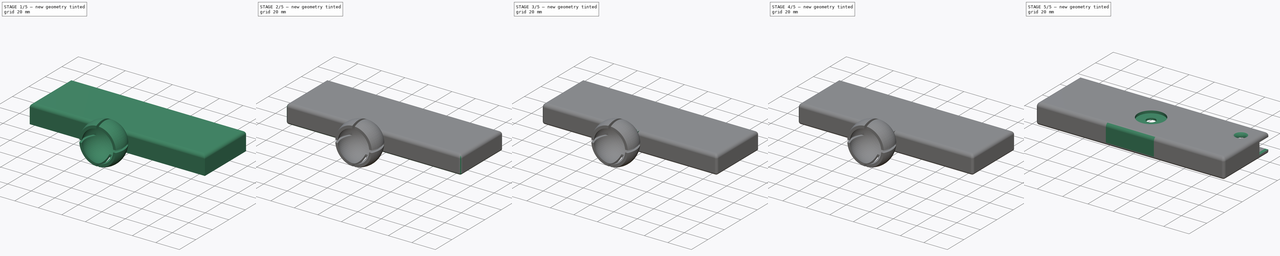
[diagram: build sequence overview — one tinted view per stage of 5, left to right]
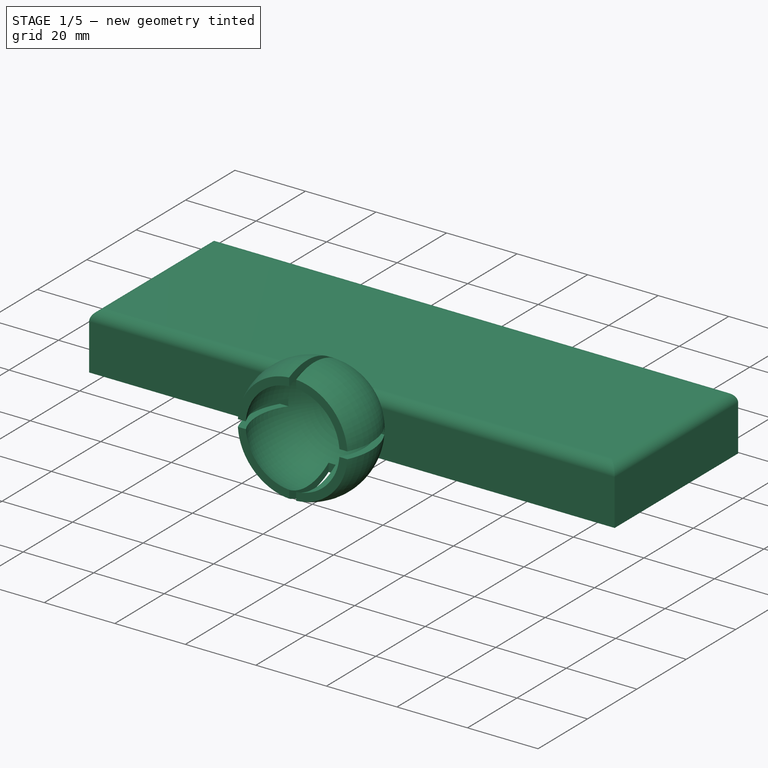
[diagram: stage 1 of 5 — iso view after this stage's code; geometry added in this stage tinted green]
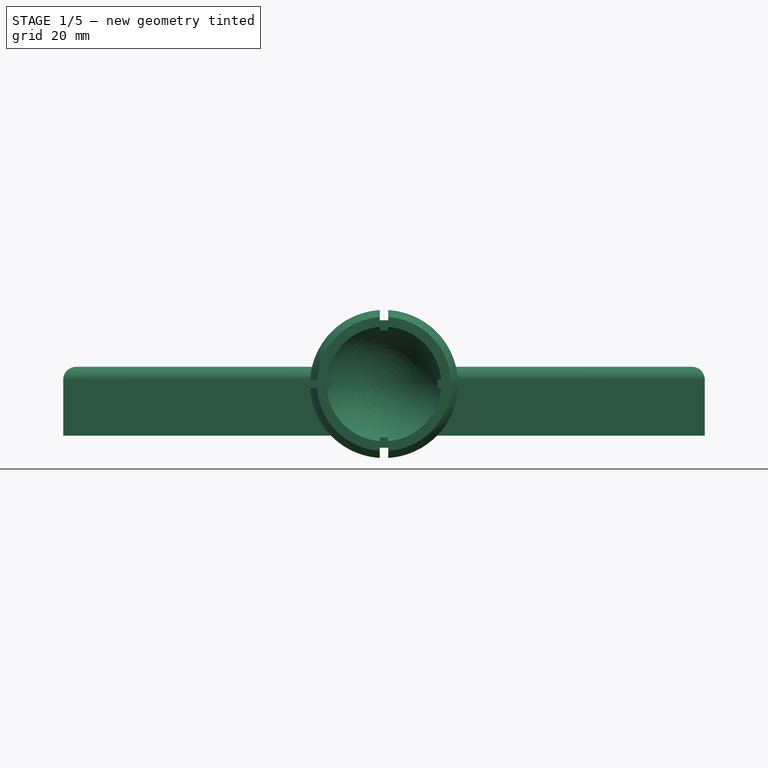
[diagram: stage 1 of 5 — front view after this stage's code; geometry added in this stage tinted green]
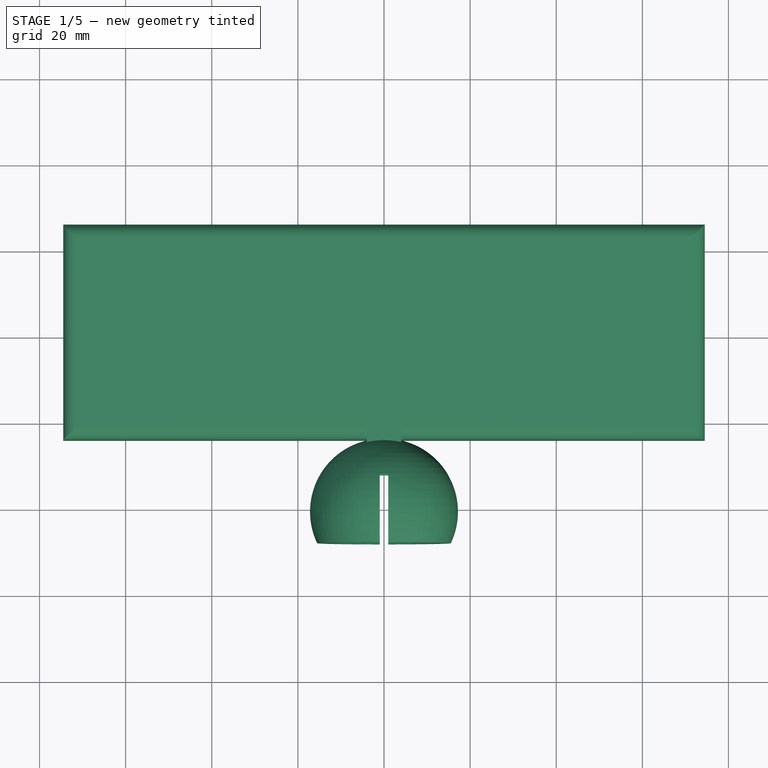
[diagram: stage 1 of 5 — top view after this stage's code; geometry added in this stage tinted green]
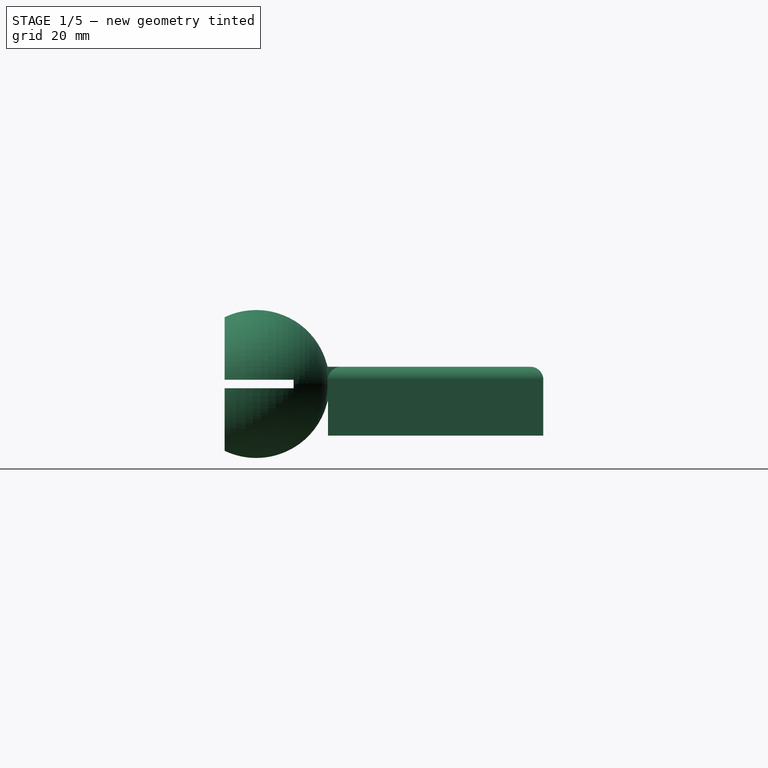
[diagram: stage 1 of 5 — right view after this stage's code; geometry added in this stage tinted green]
FCSTD DOCUMENT  (FreeCAD 0.18R4 (GitTag))
Label: Gimbal_Huawei
License: All rights reserved
LicenseURL: http://en.wikipedia.org/wiki/All_rights_reserved
objects: PartDesign::Pad×28, Sketcher::SketchObject×13, PartDesign::Pocket×12, PartDesign::Fillet×5, PartDesign::Revolution×1, PartDesign::Body×1
note: 101 computed .brp shape members not serialized (recipe doc carries the construction recipe); baked Part::Feature solids carry a one-line shape summary decoded from their .brp

FEATURE [Sketcher::SketchObject] Sketch
  MapMode = 5
  Support = -> [XY_Plane]
  sketch-geometry (4):
    g0: ArcOfCircle CenterX=0.205198 CenterY=19.3179 CenterZ=0 NormalX=0 NormalY=0 NormalZ=1 AngleXU=0 Radius=15 StartAngle=4.69871 EndAngle=7.86766
    g1: LineSegment StartX=0 StartY=34.3165 StartZ=0 EndX=0 EndY=36.3165 EndZ=0
    g2: LineSegment StartX=0 StartY=2.31927 StartZ=0 EndX=0 EndY=4.31927 EndZ=0
    g3: ArcOfCircle CenterX=0.205198 CenterY=19.3179 CenterZ=0 NormalX=0 NormalY=0 NormalZ=1 AngleXU=0 Radius=16.9998 StartAngle=4.70032 EndAngle=7.86605
  constraints (11):
    c: Coincident(g1,g0)
    c: PointOnObject(g1,g-2)
    c: Vertical(g1)
    c: Radius(g0) = 15
    c: Distance(g1) = 2
    c: PointOnObject(g2,g-2)
    c: Coincident(g2,g0)
    c: Vertical(g2)
    c: Coincident(g3,g0)
    c: Coincident(g3,g1)
    c: Coincident(g3,g2)
FEATURE [PartDesign::Revolution] Revolution
  Angle = 360
  Axis = (0,1,0)
  Base = (0,0,0)
  Profile = -> Sketch
  ReferenceAxis = -> Sketch [V_Axis]
  Reversed = true
FEATURE [Sketcher::SketchObject] Sketch001
  MapMode = 5
  Placement = pos=(0,0,0) rot=(1,0,0;1.5708rad)
  Support = -> [XZ_Plane]
  sketch-geometry (4):
    g0: LineSegment StartX=-28.6439 StartY=23.099 StartZ=0 EndX=33.6131 EndY=23.099 EndZ=0
    g1: LineSegment StartX=33.6131 StartY=23.099 StartZ=0 EndX=33.6131 EndY=-26.111 EndZ=0
    g2: LineSegment StartX=33.6131 StartY=-26.111 StartZ=0 EndX=-28.6439 EndY=-26.111 EndZ=0
    g3: LineSegment StartX=-28.6439 StartY=-26.111 StartZ=0 EndX=-28.6439 EndY=23.099 EndZ=0
  constraints (8):
    c: Coincident(g0,g1)
    c: Coincident(g1,g2)
    c: Coincident(g2,g3)
    c: Coincident(g3,g0)
    c: Horizontal(g0)
    c: Horizontal(g2)
    c: Vertical(g1)
    c: Vertical(g3)
FEATURE [PartDesign::Pocket] Pocket
  BaseFeature = -> Revolution
  Length = 12
  Length2 = 100
  Profile = -> Sketch001
  Type = 0
FEATURE [Sketcher::SketchObject] Sketch002
  MapMode = 5
  Placement = pos=(0,12,-2.6e-15) rot=(1,0,0;1.5708rad)
  Support = -> [Pocket]
  sketch-geometry (16):
    g0: LineSegment StartX=-1 StartY=19.9134 StartZ=0 EndX=1 EndY=19.9134 EndZ=0
    g1: LineSegment StartX=1 StartY=19.9134 StartZ=0 EndX=1 EndY=6.83317 EndZ=0
    g2: LineSegment StartX=1 StartY=6.83317 StartZ=0 EndX=-1 EndY=6.83317 EndZ=0
    g3: LineSegment StartX=-1 StartY=6.83317 StartZ=0 EndX=-1 EndY=19.9134 EndZ=0
    g4: LineSegment StartX=5.15281 StartY=1 StartZ=0 EndX=32.8158 EndY=1 EndZ=0
    g5: LineSegment StartX=32.8158 StartY=1 StartZ=0 EndX=32.8158 EndY=-1 EndZ=0
    g6: LineSegment StartX=32.8158 StartY=-1 StartZ=0 EndX=5.15281 EndY=-1 EndZ=0
    g7: LineSegment StartX=5.15281 StartY=-1 StartZ=0 EndX=5.15281 EndY=1 EndZ=0
    g8: LineSegment StartX=-7.96572 StartY=1 StartZ=0 EndX=-26.0275 EndY=1 EndZ=0
    g9: LineSegment StartX=-26.0275 StartY=1 StartZ=0 EndX=-26.0275 EndY=-1 EndZ=0
    g10: LineSegment StartX=-26.0275 StartY=-1 StartZ=0 EndX=-7.96572 EndY=-1 EndZ=0
    g11: LineSegment StartX=-7.96572 StartY=-1 StartZ=0 EndX=-7.96572 EndY=1 EndZ=0
    g12: LineSegment StartX=-1 StartY=-8.59168 StartZ=0 EndX=1 EndY=-8.59168 EndZ=0
    g13: LineSegment StartX=1 StartY=-8.59168 StartZ=0 EndX=1 EndY=-22.7732 EndZ=0
    g14: LineSegment StartX=1 StartY=-22.7732 StartZ=0 EndX=-1 EndY=-22.7732 EndZ=0
    g15: LineSegment StartX=-1 StartY=-22.7732 StartZ=0 EndX=-1 EndY=-8.59168 EndZ=0
  constraints (40):
    c: Coincident(g0,g1)
    c: Coincident(g1,g2)
    c: Coincident(g2,g3)
    c: Coincident(g3,g0)
    c: Horizontal(g0)
    c: Horizontal(g2)
    c: Vertical(g1)
    c: Vertical(g3)
    c: DistanceX(g0,g0) = 2
    c: DistanceX(g-1,g1) = 1
    c: Coincident(g4,g5)
    c: Coincident(g5,g6)
    c: Coincident(g6,g7)
    c: Coincident(g7,g4)
    c: Horizontal(g4)
    c: Horizontal(g6)
    c: Vertical(g5)
    c: Vertical(g7)
    c: Coincident(g8,g9)
    c: Coincident(g9,g10)
    c: Coincident(g10,g11)
    c: Coincident(g11,g8)
    c: Horizontal(g8)
    c: Horizontal(g10)
    c: Vertical(g9)
    c: Vertical(g11)
    c: Coincident(g12,g13)
    c: Coincident(g13,g14)
    c: Coincident(g14,g15)
    c: Coincident(g15,g12)
    c: Horizontal(g12)
    c: Horizontal(g14)
    c: Vertical(g13)
    c: Vertical(g15)
    c: DistanceX(g14,g14) = 2
    c: DistanceX(g-1,g12) = 1
    c: DistanceY(g7,g7) = 2
    c: DistanceY(g-1,g4) = 1
    c: DistanceY(g11,g11) = 2
    c: DistanceY(g-1,g8) = 1
FEATURE [PartDesign::Pocket] Pocket001
  BaseFeature = -> Pocket
  Length = 16
  Length2 = 100
  Profile = -> Sketch002
  Type = 0
FEATURE [Sketcher::SketchObject] Sketch003
  MapMode = 5
  Support = -> [XY_Plane]
  sketch-geometry (4):
    g0: LineSegment StartX=-74.5 StartY=86 StartZ=0 EndX=74.5 EndY=86 EndZ=0
    g1: LineSegment StartX=74.5 StartY=86 StartZ=0 EndX=74.5 EndY=36 EndZ=0
    g2: LineSegment StartX=74.5 StartY=36 StartZ=0 EndX=-74.5 EndY=36 EndZ=0
    g3: LineSegment StartX=-74.5 StartY=36 StartZ=0 EndX=-74.5 EndY=86 EndZ=0
  constraints (12):
    c: Coincident(g0,g1)
    c: Coincident(g1,g2)
    c: Coincident(g2,g3)
    c: Coincident(g3,g0)
    c: Horizontal(g0)
    c: Horizontal(g2)
    c: Vertical(g1)
    c: Vertical(g3)
    c: DistanceX(g0,g0) = 149
    c: DistanceX(g-1,g1) = 74.5
    c: DistanceY(g1,g1) = 50
    c: DistanceY(g-1,g1) = 36
FEATURE [PartDesign::Pad] Pad
  BaseFeature = -> Pocket001
  Length = 4
  Length2 = 100
  Profile = -> Sketch003
  Type = 0
FEATURE [Sketcher::SketchObject] Sketch004
  MapMode = 5
  Placement = pos=(0,0,0) rot=(1,0,0;3.14159rad)
  Support = -> [Pad]
  sketch-geometry (12):
    g0: LineSegment StartX=-74.5 StartY=-36 StartZ=0 EndX=-71.5 EndY=-36 EndZ=0
    g1: LineSegment StartX=-71.5 StartY=-36 StartZ=0 EndX=-71.5 EndY=-86 EndZ=0
    g2: LineSegment StartX=-71.5 StartY=-86 StartZ=0 EndX=-74.5 EndY=-86 EndZ=0
    g3: LineSegment StartX=-74.5 StartY=-86 StartZ=0 EndX=-74.5 EndY=-36 EndZ=0
    g4: LineSegment StartX=74.5 StartY=-36 StartZ=0 EndX=71.5 EndY=-36 EndZ=0
    g5: LineSegment StartX=71.5 StartY=-36 StartZ=0 EndX=71.5 EndY=-86 EndZ=0
    g6: LineSegment StartX=71.5 StartY=-86 StartZ=0 EndX=74.5 EndY=-86 EndZ=0
    g7: LineSegment StartX=74.5 StartY=-86 StartZ=0 EndX=74.5 EndY=-36 EndZ=0
    g8: LineSegment StartX=-71.5 StartY=-36 StartZ=0 EndX=71.5 EndY=-36 EndZ=0
    g9: LineSegment StartX=71.5 StartY=-36 StartZ=0 EndX=71.5 EndY=-39 EndZ=0
    g10: LineSegment StartX=71.5 StartY=-39 StartZ=0 EndX=-71.5 EndY=-39 EndZ=0
    g11: LineSegment StartX=-71.5 StartY=-39 StartZ=0 EndX=-71.5 EndY=-36 EndZ=0
  constraints (35):
    c: Coincident(g0,g1)
    c: Coincident(g1,g2)
    c: Coincident(g2,g3)
    c: Coincident(g3,g0)
    c: Horizontal(g0)
    c: Horizontal(g2)
    c: Vertical(g1)
    c: Vertical(g3)
    c: Coincident(g4,g5)
    c: Coincident(g5,g6)
    c: Coincident(g6,g7)
    c: Coincident(g7,g4)
    c: Horizontal(g4)
    c: Horizontal(g6)
    c: Vertical(g5)
    c: Vertical(g7)
    c: DistanceX(g4,g4) = 3
    c: DistanceX(g0,g0) = 3
    c: DistanceY(g0,g-1) = 36
    c: DistanceY(g4,g-1) = 36
    c: DistanceX(g0,g-1) = 74.5
    c: DistanceX(g-1,g4) = 74.5
    c: DistanceY(g7,g7) = 50
    c: DistanceY(g3,g3) = 50
    c: Coincident(g8,g9)
    c: Coincident(g9,g10)
    c: Coincident(g10,g11)
    c: Coincident(g11,g8)
    c: Horizontal(g8)
    c: Horizontal(g10)
    c: Vertical(g9)
    c: Vertical(g11)
    c: Coincident(g8,g0)
    c: DistanceY(g9,g9) = 3
    c: DistanceX(g8,g8) = 143
FEATURE [PartDesign::Pad] Pad001
  BaseFeature = -> Pad
  Length = 12
  Length2 = 100
  Profile = -> Sketch004
  Type = 0
FEATURE [Sketcher::SketchObject] Sketch005
  MapMode = 5
  Placement = pos=(-71.5,0,0) rot=(0.57735,0.57735,0.57735;2.0944rad)
  Support = -> [Pad001]
  sketch-geometry (4):
    g0: LineSegment StartX=36 StartY=-9 StartZ=0 EndX=86 EndY=-9 EndZ=0
    g1: LineSegment StartX=86 StartY=-9 StartZ=0 EndX=86 EndY=-12 EndZ=0
    g2: LineSegment StartX=86 StartY=-12 StartZ=0 EndX=36 EndY=-12 EndZ=0
    g3: LineSegment StartX=36 StartY=-12 StartZ=0 EndX=36 EndY=-9 EndZ=0
  constraints (12):
    c: Coincident(g0,g1)
    c: Coincident(g1,g2)
    c: Coincident(g2,g3)
    c: Coincident(g3,g0)
    c: Horizontal(g0)
    c: Horizontal(g2)
    c: Vertical(g1)
    c: Vertical(g3)
    c: DistanceY(g1,g1) = 3
    c: DistanceY(g0,g-1) = 9
    c: DistanceX(g2,g2) = 50
    c: DistanceX(g-1,g2) = 36
FEATURE [PartDesign::Pad] Pad002
  BaseFeature = -> Pad001
  Length = 5
  Length2 = 100
  Profile = -> Sketch005
  Type = 0
FEATURE [Sketcher::SketchObject] Sketch006
  MapMode = 5
  Placement = pos=(71.5,0,0) rot=(0.57735,-0.57735,-0.57735;2.0944rad)
  Support = -> [Pad002]
  sketch-geometry (4):
    g0: LineSegment StartX=-86 StartY=-9 StartZ=0 EndX=-36 EndY=-9 EndZ=0
    g1: LineSegment StartX=-36 StartY=-9 StartZ=0 EndX=-36 EndY=-12 EndZ=0
    g2: LineSegment StartX=-36 StartY=-12 StartZ=0 EndX=-86 EndY=-12 EndZ=0
    g3: LineSegment StartX=-86 StartY=-12 StartZ=0 EndX=-86 EndY=-9 EndZ=0
  constraints (12):
    c: Coincident(g0,g1)
    c: Coincident(g1,g2)
    c: Coincident(g2,g3)
    c: Coincident(g3,g0)
    c: Horizontal(g0)
    c: Horizontal(g2)
    c: Vertical(g1)
    c: Vertical(g3)
    c: DistanceX(g2,g2) = 50
    c: DistanceX(g1,g-1) = 36
    c: DistanceY(g3,g3) = 3
    c: DistanceY(g1,g-1) = 12
FEATURE [PartDesign::Pad] Pad003
  BaseFeature = -> Pad002
  Length = 5
  Length2 = 100
  Profile = -> Sketch006
  Type = 0
FEATURE [Sketcher::SketchObject] Sketch007
  MapMode = 5
  Placement = pos=(0,36,0) rot=(1,0,0;1.5708rad)
  Support = -> [Pad003]
  sketch-geometry (4):
    g0: LineSegment StartX=-4 StartY=4 StartZ=0 EndX=4 EndY=4 EndZ=0
    g1: LineSegment StartX=4 StartY=4 StartZ=0 EndX=4 EndY=-4 EndZ=0
    g2: LineSegment StartX=4 StartY=-4 StartZ=0 EndX=-4 EndY=-4 EndZ=0
    g3: LineSegment StartX=-4 StartY=-4 StartZ=0 EndX=-4 EndY=4 EndZ=0
  constraints (12):
    c: Coincident(g0,g1)
    c: Coincident(g1,g2)
    c: Coincident(g2,g3)
    c: Coincident(g3,g0)
    c: Horizontal(g0)
    c: Horizontal(g2)
    c: Vertical(g1)
    c: Vertical(g3)
    c: DistanceY(g-1,g0) = 4
    c: DistanceY(g1,g1) = 8
    c: DistanceX(g2,g2) = 8
    c: DistanceX(g2,g-1) = 4
FEATURE [PartDesign::Pad] Pad004
  BaseFeature = -> Pad003
  Length = 1.5
  Length2 = 100
  Profile = -> Sketch007
  Type = 0
FEATURE [PartDesign::Fillet] Fillet
  Base = -> Pad004 [Face25]
  BaseFeature = -> Pad004
  Radius = 3
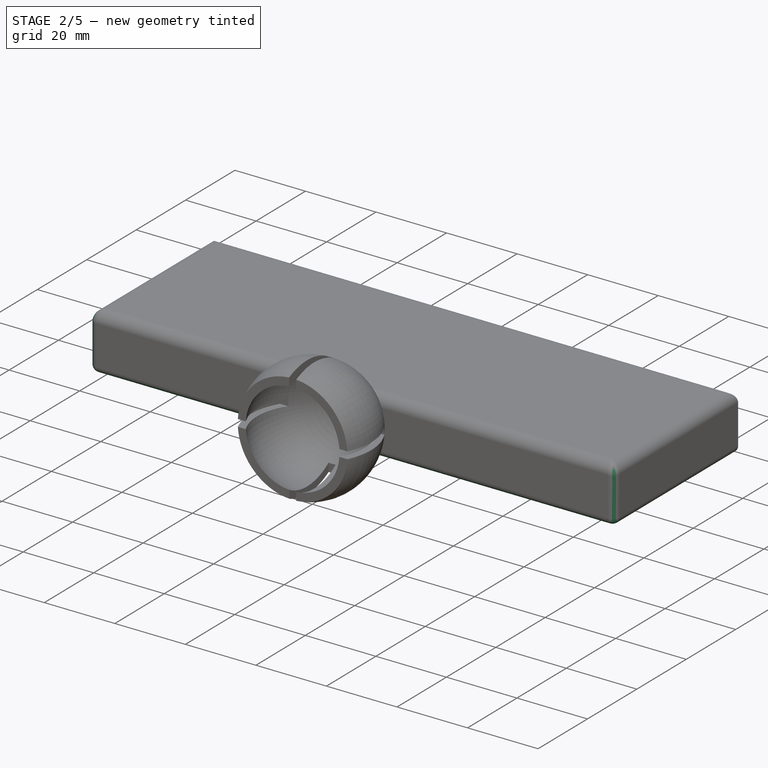
[diagram: stage 2 of 5 — iso view after this stage's code; geometry added in this stage tinted green]
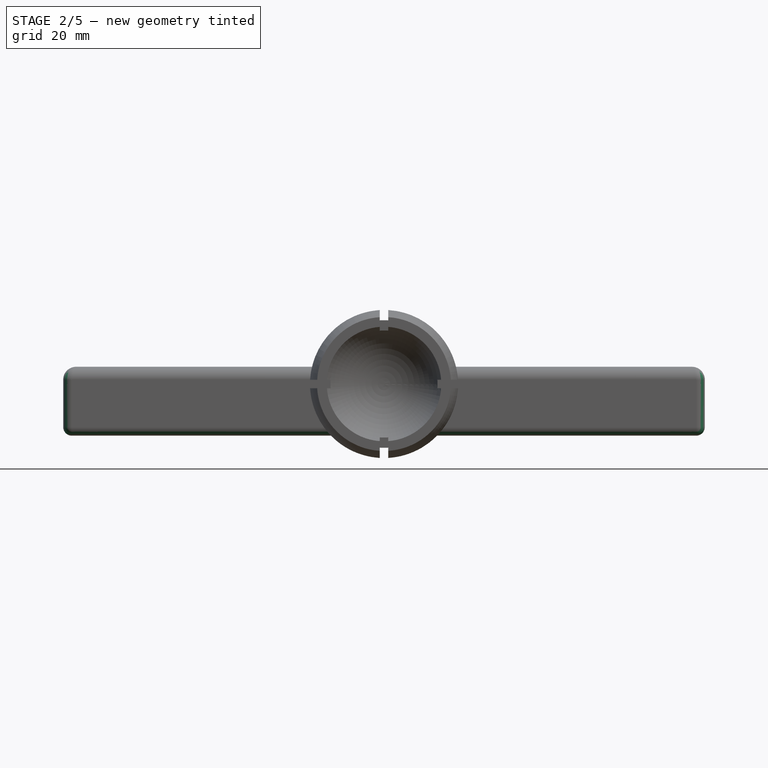
[diagram: stage 2 of 5 — front view after this stage's code; geometry added in this stage tinted green]
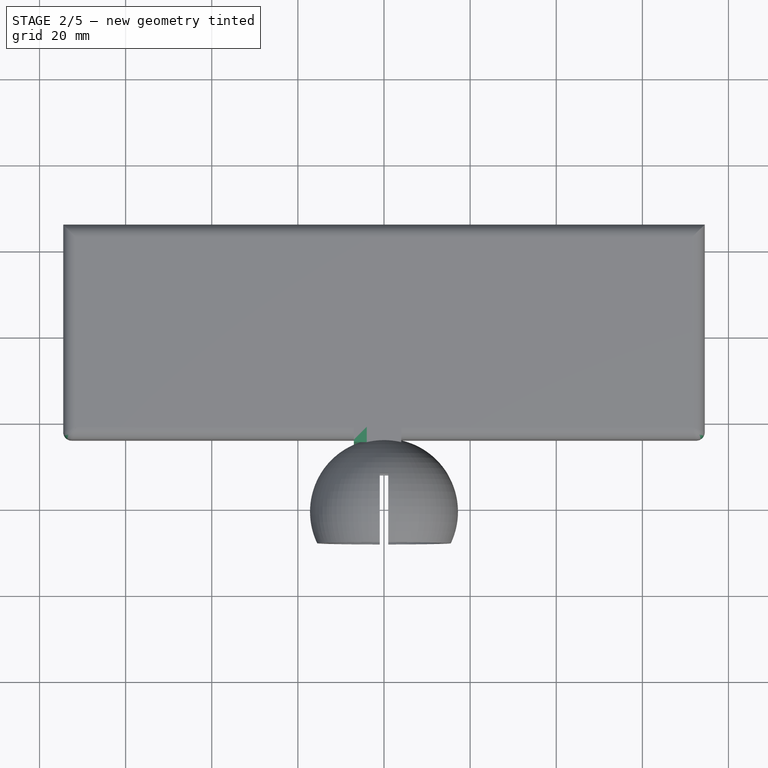
[diagram: stage 2 of 5 — top view after this stage's code; geometry added in this stage tinted green]
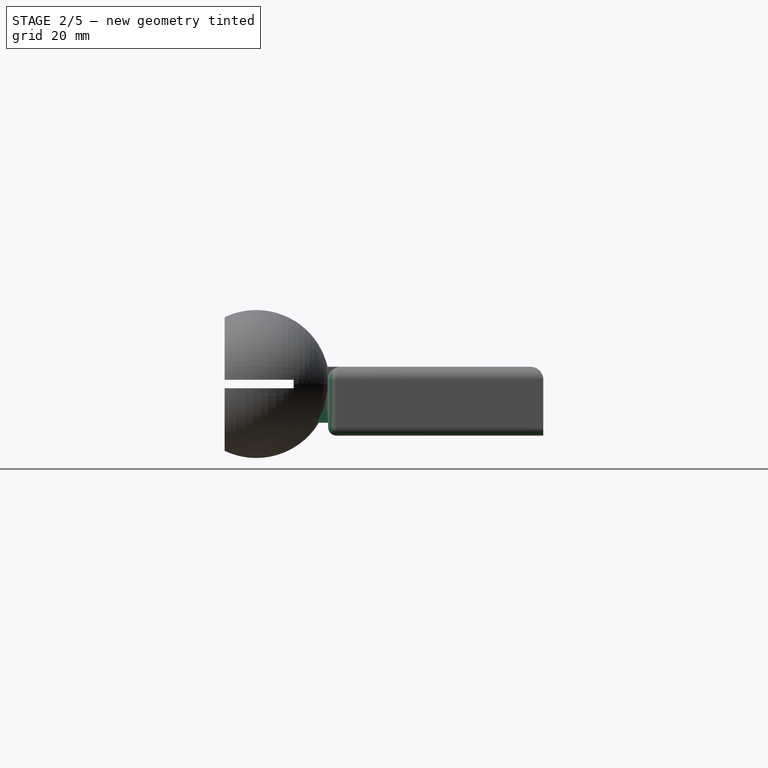
[diagram: stage 2 of 5 — right view after this stage's code; geometry added in this stage tinted green]
FEATURE [PartDesign::Fillet] Fillet001
  Base = -> Fillet [Edge18,Edge65,Edge68,Edge61,Edge58]
  BaseFeature = -> Fillet
  Radius = 2
FEATURE [PartDesign::Fillet] Fillet002
  Base = -> Fillet001 [Edge51,Edge52,Edge20,Edge60,Edge61,Edge26]
  BaseFeature = -> Fillet001
  Radius = 2
FEATURE [PartDesign::Fillet] Fillet003
  Base = -> Fillet002 [Edge186,Edge182,Edge187,Edge112,Edge122,Edge71]
  BaseFeature = -> Fillet002
  Radius = 1
FEATURE [PartDesign::Pad] Pad005
  BaseFeature = -> Fillet003
  Length = 5
  Length2 = 100
  Profile = -> Fillet003 [Face55]
  Type = 0
FEATURE [PartDesign::Pad] Pad006
  BaseFeature = -> Pad005
  Length = 2
  Length2 = 100
  Profile = -> Pad005 [Face66]
  Type = 0
FEATURE [PartDesign::Pad] Pad007
  BaseFeature = -> Pad006
  Length = 1
  Length2 = 100
  Profile = -> Pad006 [Face84]
  Type = 0
FEATURE [PartDesign::Pad] Pad008
  BaseFeature = -> Pad007
  Length = 3
  Length2 = 100
  Profile = -> Pad007 [Face54]
  Type = 0
FEATURE [PartDesign::Pad] Pad009
  BaseFeature = -> Pad008
  Length = 3
  Length2 = 100
  Profile = -> Pad008 [Face53]
  Type = 0
FEATURE [PartDesign::Pad] Pad010
  BaseFeature = -> Pad009
  Length = 3
  Length2 = 100
  Profile = -> Pad009 [Face73]
  Type = 0
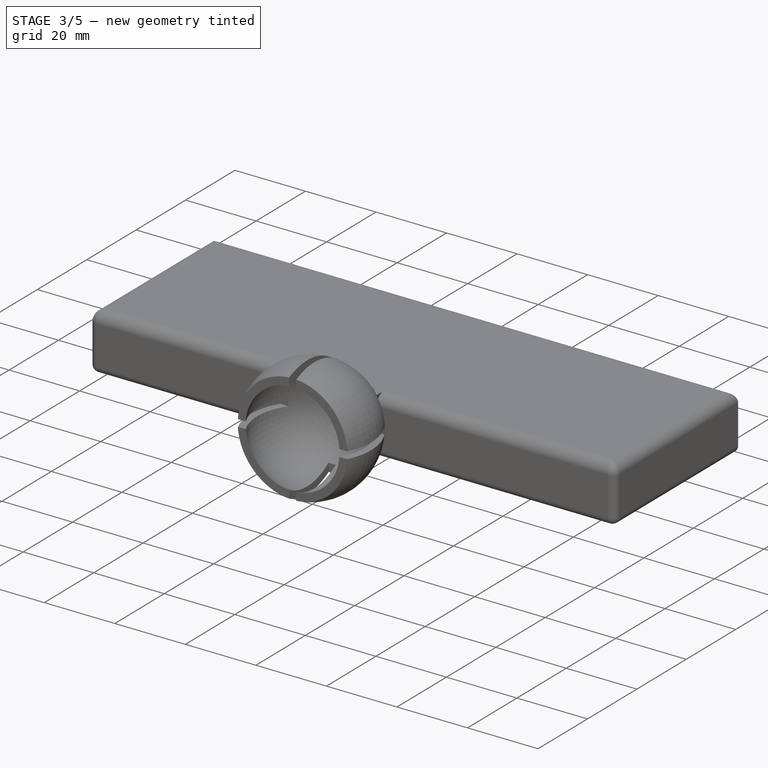
[diagram: stage 3 of 5 — iso view after this stage's code; geometry added in this stage tinted green]
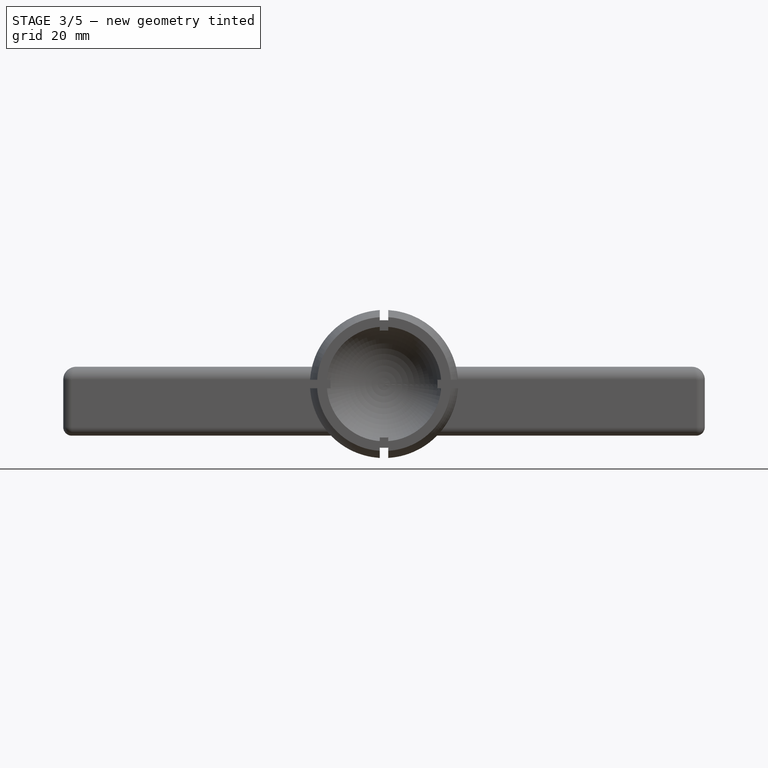
[diagram: stage 3 of 5 — front view after this stage's code; geometry added in this stage tinted green]
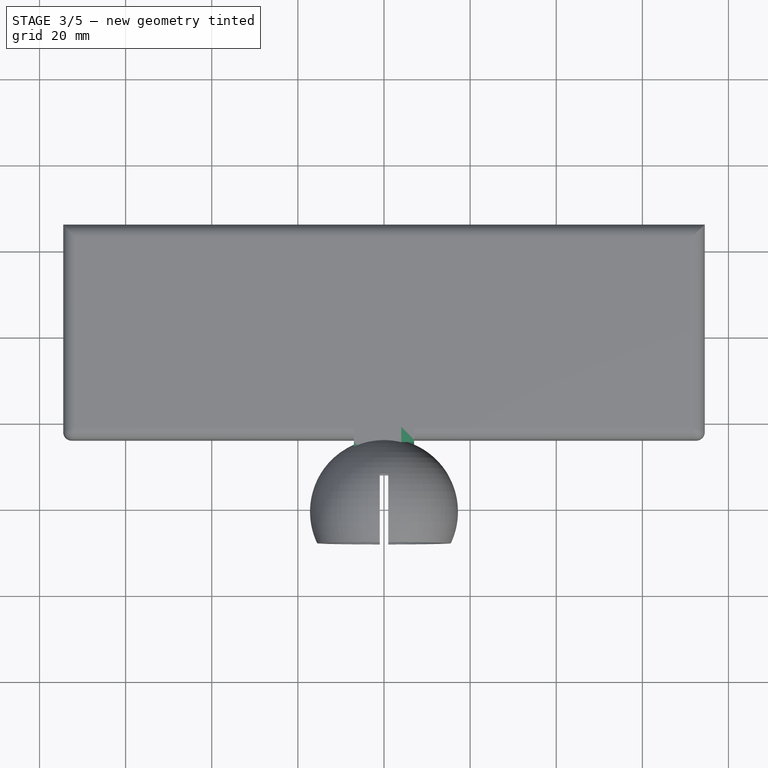
[diagram: stage 3 of 5 — top view after this stage's code; geometry added in this stage tinted green]
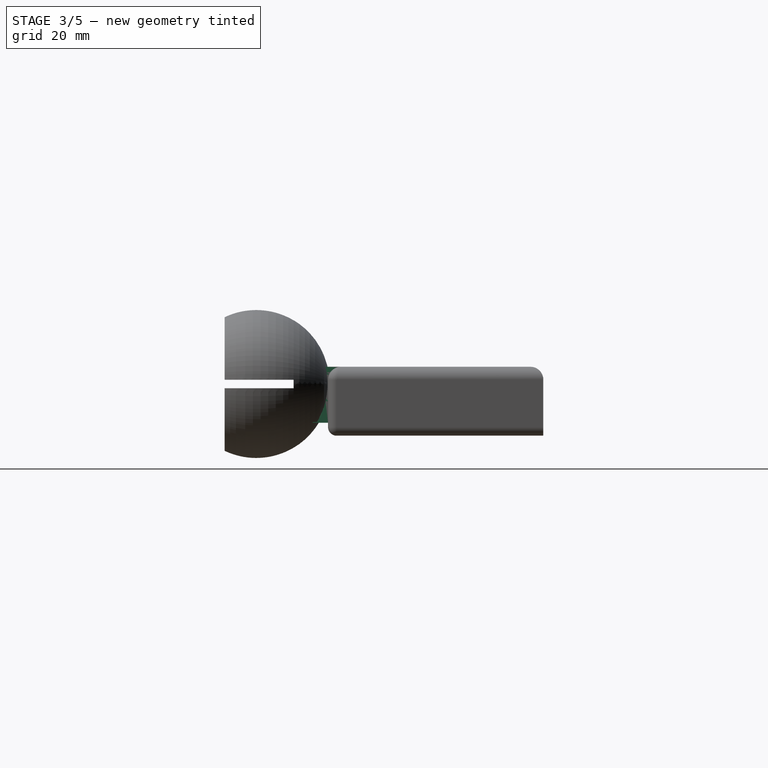
[diagram: stage 3 of 5 — right view after this stage's code; geometry added in this stage tinted green]
FEATURE [PartDesign::Pad] Pad011
  BaseFeature = -> Pad010
  Length = 1
  Length2 = 100
  Profile = -> Pad010 [Face75]
  Type = 0
FEATURE [PartDesign::Pad] Pad012
  BaseFeature = -> Pad011
  Length = 1
  Length2 = 100
  Profile = -> Pad011 [Face95]
  Type = 0
FEATURE [PartDesign::Pad] Pad013
  BaseFeature = -> Pad012
  Length = 1
  Length2 = 100
  Profile = -> Pad012 [Face74]
  Type = 0
FEATURE [PartDesign::Pad] Pad014
  BaseFeature = -> Pad013
  Length = 1
  Length2 = 100
  Profile = -> Pad013 [Face97]
  Type = 0
FEATURE [PartDesign::Pad] Pad015
  BaseFeature = -> Pad014
  Length = 1
  Length2 = 100
  Profile = -> Pad014 [Face98]
  Type = 0
FEATURE [PartDesign::Pad] Pad016
  BaseFeature = -> Pad015
  Length = 1
  Length2 = 100
  Profile = -> Pad015 [Face67]
  Type = 0
FEATURE [PartDesign::Pad] Pad017
  BaseFeature = -> Pad016
  Length = 3
  Length2 = 100
  Profile = -> Pad016 [Face58]
  Type = 0
FEATURE [PartDesign::Pad] Pad018
  BaseFeature = -> Pad017
  Length = 3
  Length2 = 100
  Profile = -> Pad017 [Face57]
  Type = 0
FEATURE [PartDesign::Pad] Pad019
  BaseFeature = -> Pad018
  Length = 3
  Length2 = 100
  Profile = -> Pad018 [Face86]
  Type = 0
FEATURE [PartDesign::Pad] Pad020
  BaseFeature = -> Pad019
  Length = 1
  Length2 = 100
  Profile = -> Pad019 [Face88]
  Type = 0
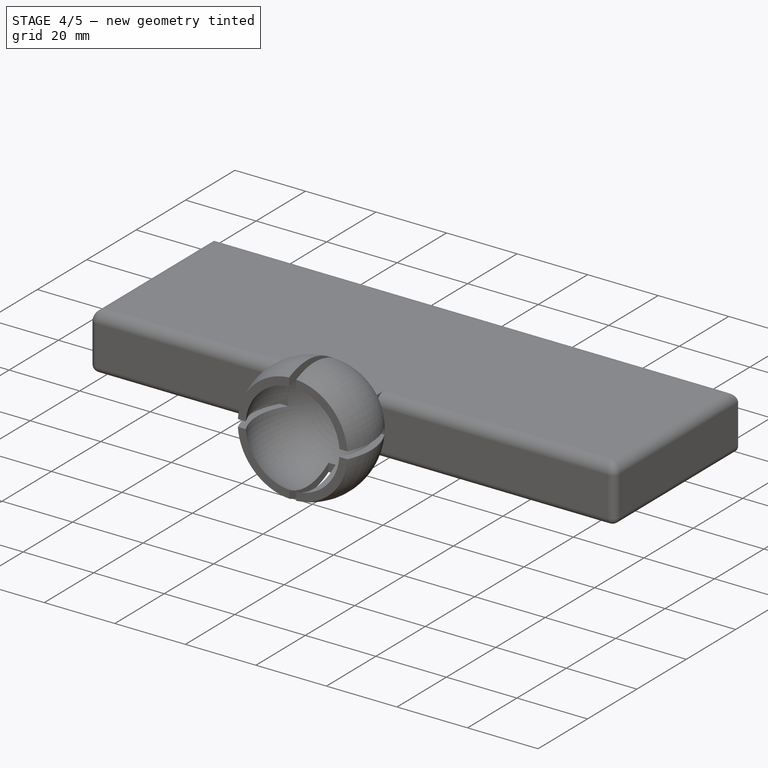
[diagram: stage 4 of 5 — iso view after this stage's code; geometry added in this stage tinted green]
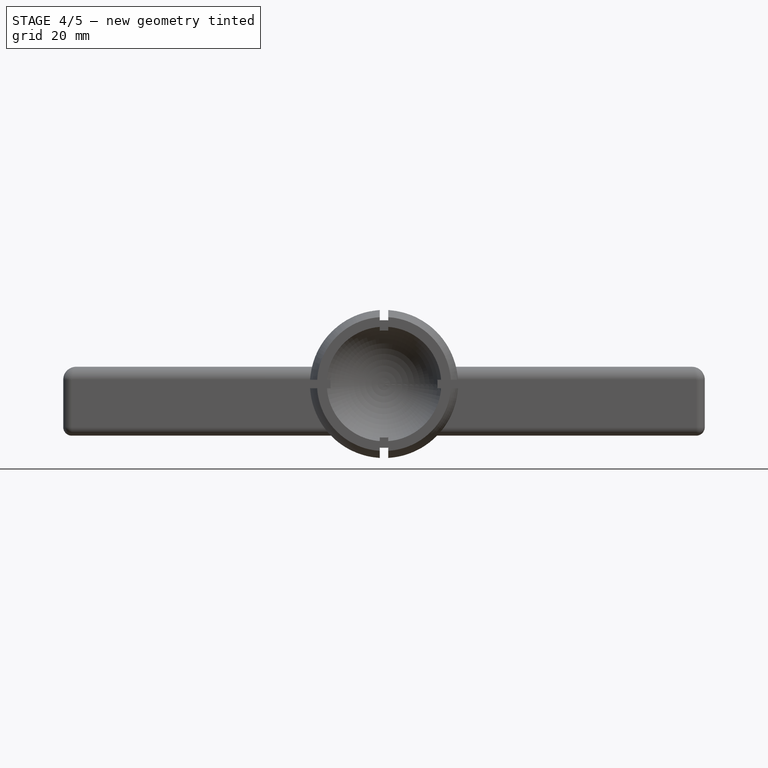
[diagram: stage 4 of 5 — front view after this stage's code; geometry added in this stage tinted green]
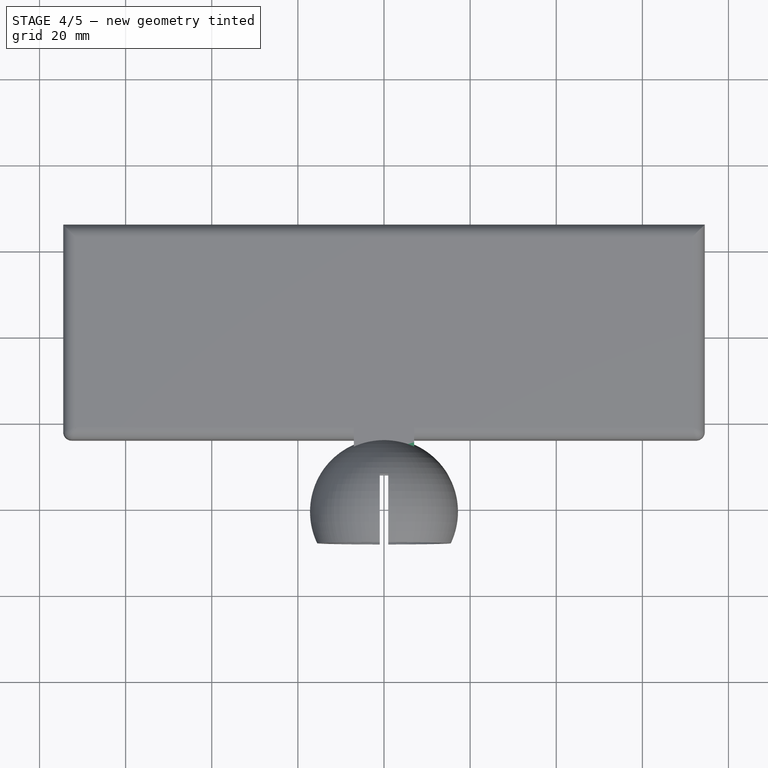
[diagram: stage 4 of 5 — top view after this stage's code; geometry added in this stage tinted green]
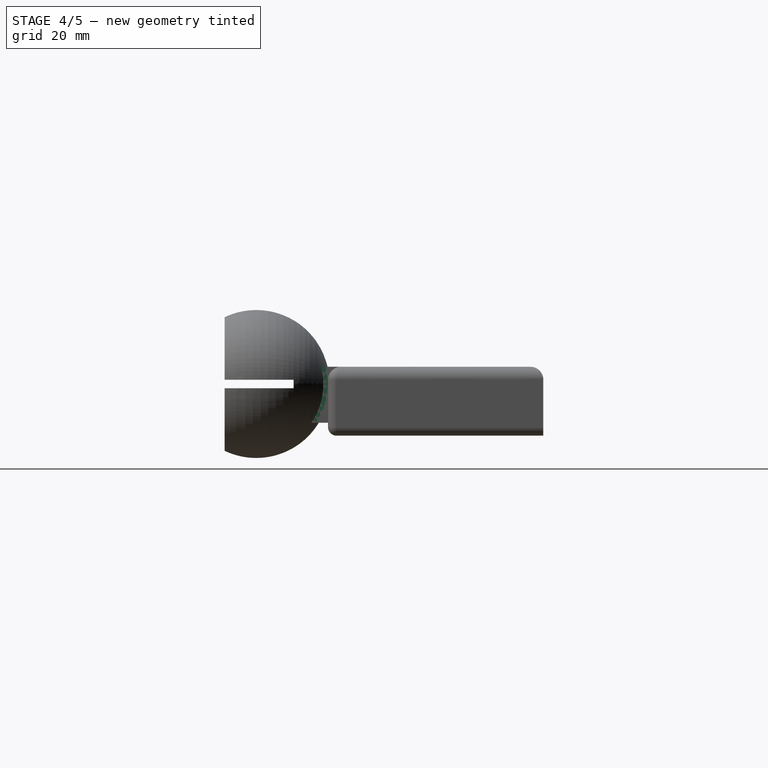
[diagram: stage 4 of 5 — right view after this stage's code; geometry added in this stage tinted green]
FEATURE [PartDesign::Pad] Pad021
  BaseFeature = -> Pad020
  Length = 1
  Length2 = 100
  Profile = -> Pad020 [Face113]
  Type = 0
FEATURE [PartDesign::Pad] Pad022
  BaseFeature = -> Pad021
  Length = 1
  Length2 = 100
  Profile = -> Pad021 [Face115]
  Type = 0
FEATURE [PartDesign::Pad] Pad023
  BaseFeature = -> Pad022
  Length = 1
  Length2 = 100
  Profile = -> Pad022 [Face117]
  Type = 0
FEATURE [PartDesign::Pad] Pad024
  BaseFeature = -> Pad023
  Length = 1
  Length2 = 100
  Profile = -> Pad023 [Face90]
  Type = 0
FEATURE [PartDesign::Pad] Pad025
  BaseFeature = -> Pad024
  Length = 1
  Length2 = 100
  Profile = -> Pad024 [Face78]
  Type = 0
FEATURE [PartDesign::Pad] Pad026
  BaseFeature = -> Pad025
  Length = 1
  Length2 = 100
  Profile = -> Pad025 [Face77]
  Type = 0
FEATURE [PartDesign::Pocket] Pocket002
  BaseFeature = -> Pad026
  Length = 0.5
  Length2 = 100
  Profile = -> Pad026 [Face17]
  Type = 0
FEATURE [PartDesign::Pocket] Pocket003
  BaseFeature = -> Pocket002
  Length = 0.5
  Length2 = 100
  Profile = -> Pocket002 [Face16]
  Type = 0
FEATURE [PartDesign::Pocket] Pocket004
  BaseFeature = -> Pocket003
  Length = 0.5
  Length2 = 100
  Profile = -> Pocket003 [Face18]
  Type = 0
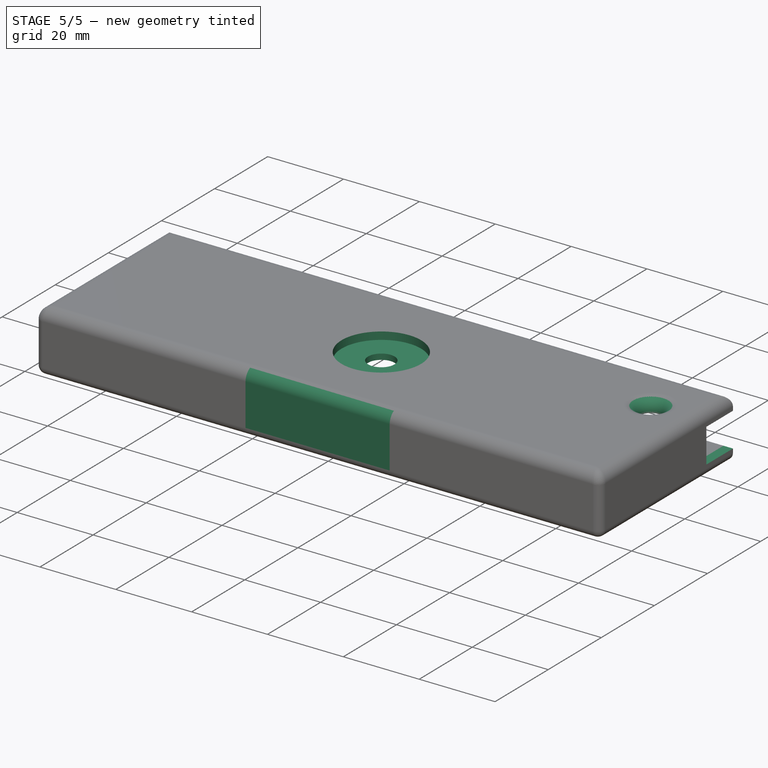
[diagram: stage 5 of 5 — iso view after this stage's code; geometry added in this stage tinted green]
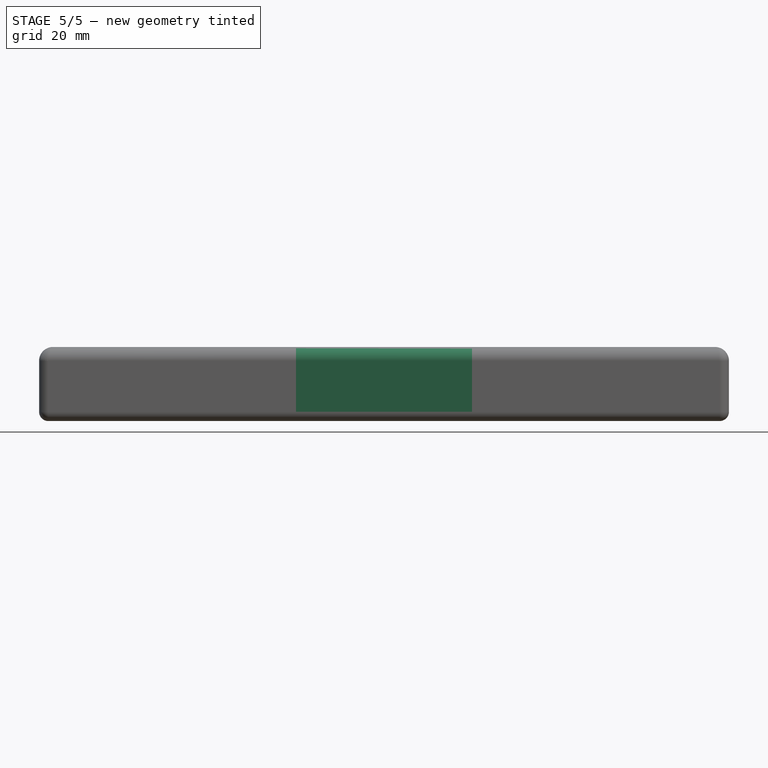
[diagram: stage 5 of 5 — front view after this stage's code; geometry added in this stage tinted green]
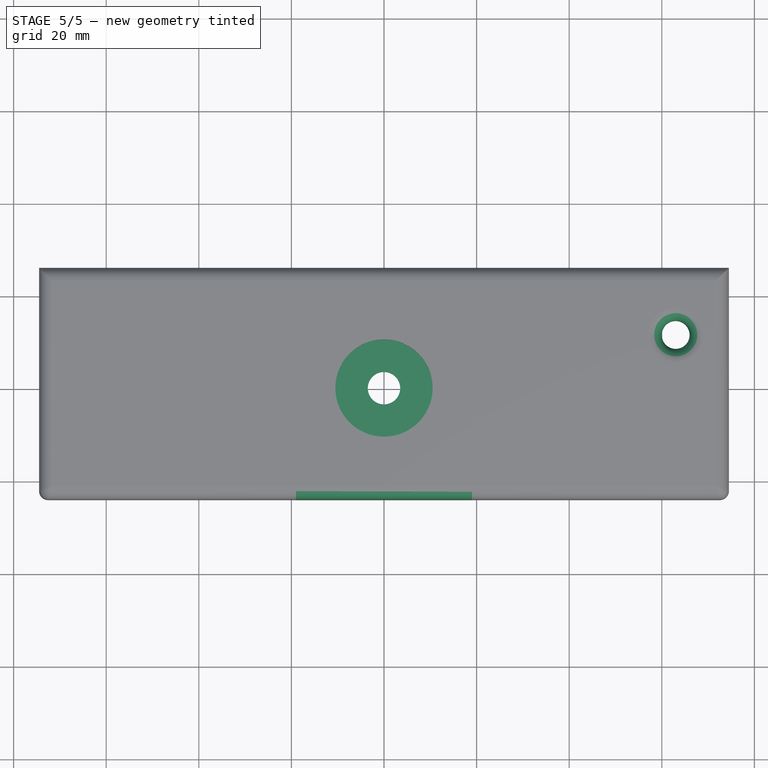
[diagram: stage 5 of 5 — top view after this stage's code; geometry added in this stage tinted green]
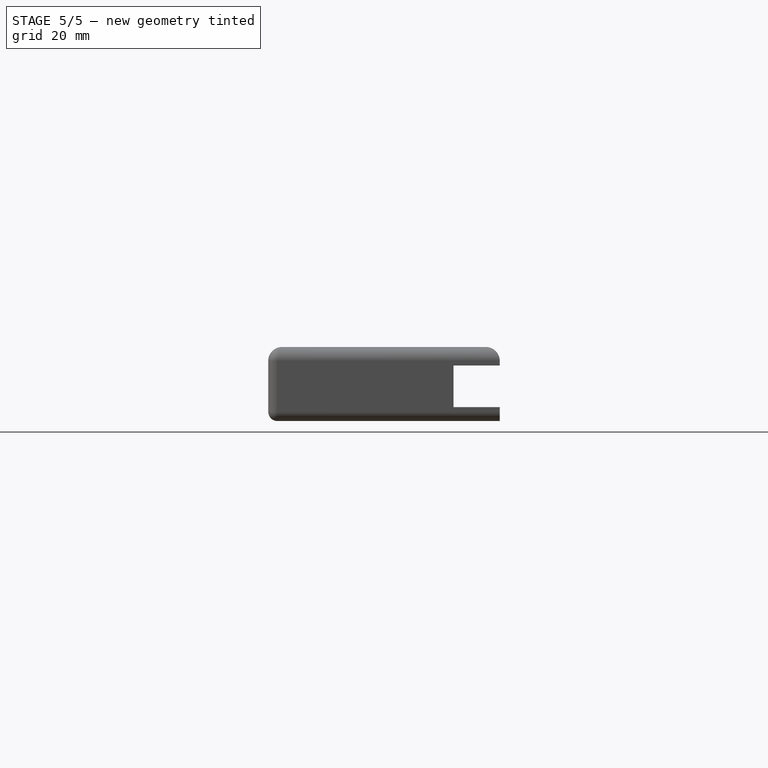
[diagram: stage 5 of 5 — right view after this stage's code; geometry added in this stage tinted green]
FEATURE [PartDesign::Pocket] Pocket005
  BaseFeature = -> Pocket004
  Length = 0.5
  Length2 = 100
  Profile = -> Pocket004 [Face37]
  Type = 0
FEATURE [PartDesign::Pocket] Pocket006
  BaseFeature = -> Pocket005
  Length = 0.5
  Length2 = 100
  Profile = -> Pocket005 [Face36]
  Type = 0
FEATURE [Sketcher::SketchObject] Sketch008
  MapMode = 5
  Placement = pos=(0,86,0) rot=(0,0.707107,0.707107;3.14159rad)
  Support = -> [Pocket006]
  sketch-geometry (4):
    g0: LineSegment StartX=-84.286 StartY=0 StartZ=0 EndX=79.0675 EndY=0 EndZ=0
    g1: LineSegment StartX=79.0675 StartY=0 StartZ=0 EndX=79.0675 EndY=-9 EndZ=0
    g2: LineSegment StartX=79.0675 StartY=-9 StartZ=0 EndX=-84.286 EndY=-9 EndZ=0
    g3: LineSegment StartX=-84.286 StartY=-9 StartZ=0 EndX=-84.286 EndY=0 EndZ=0
  constraints (10):
    c: Coincident(g0,g1)
    c: Coincident(g1,g2)
    c: Coincident(g2,g3)
    c: Coincident(g3,g0)
    c: Horizontal(g0)
    c: Horizontal(g2)
    c: Vertical(g1)
    c: Vertical(g3)
    c: PointOnObject(g0,g-1)
    c: DistanceY(g1,g1) = 9
FEATURE [PartDesign::Pocket] Pocket007
  BaseFeature = -> Pocket006
  Length = 10
  Length2 = 100
  Profile = -> Sketch008
  Type = 0
FEATURE [Sketcher::SketchObject] Sketch009
  MapMode = 5
  Placement = pos=(0,0,0.5) rot=(1,0,0;3.14159rad)
  Support = -> [Pocket007]
  sketch-geometry (1):
    g0: Circle CenterX=63 CenterY=-71.5 CenterZ=0 NormalX=0 NormalY=0 NormalZ=1 AngleXU=0 Radius=3
  constraints (3):
    c: Radius(g0) = 3
    c: DistanceX(g-1,g0) = 63
    c: DistanceY(g0,g-1) = 71.5
FEATURE [PartDesign::Pocket] Pocket008
  BaseFeature = -> Pocket007
  Length = 5
  Length2 = 100
  Profile = -> Sketch009
  Type = 0
FEATURE [PartDesign::Fillet] Fillet004
  Base = -> Pocket008 [Edge155]
  BaseFeature = -> Pocket008
  Radius = 3
FEATURE [Sketcher::SketchObject] Sketch010
  MapMode = 5
  Placement = pos=(0,12,-2.6e-15) rot=(1,0,0;1.5708rad)
  Support = -> [Fillet004]
  sketch-geometry (4):
    g0: LineSegment StartX=-19 StartY=25 StartZ=0 EndX=19 EndY=25 EndZ=0
    g1: LineSegment StartX=19 StartY=25 StartZ=0 EndX=19 EndY=-25 EndZ=0
    g2: LineSegment StartX=19 StartY=-25 StartZ=0 EndX=-19 EndY=-25 EndZ=0
    g3: LineSegment StartX=-19 StartY=-25 StartZ=0 EndX=-19 EndY=25 EndZ=0
  constraints (12):
    c: Coincident(g0,g1)
    c: Coincident(g1,g2)
    c: Coincident(g2,g3)
    c: Coincident(g3,g0)
    c: Horizontal(g0)
    c: Horizontal(g2)
    c: Vertical(g1)
    c: Vertical(g3)
    c: DistanceX(g0,g0) = 38
    c: DistanceX(g-1,g0) = 19
    c: DistanceY(g1,g1) = 50
    c: DistanceY(g-1,g0) = 25
FEATURE [PartDesign::Pocket] Pocket009
  BaseFeature = -> Fillet004
  Length = 27
  Length2 = 100
  Profile = -> Sketch010
  Type = 0
FEATURE [PartDesign::Pad] Pad027
  BaseFeature = -> Pocket009
  Length = 38
  Length2 = 100
  Profile = -> Pocket009 [Face19]
  Type = 0
FEATURE [Sketcher::SketchObject] Sketch011
  MapMode = 5
  Placement = pos=(0,0,4) rot=(0,0,1;0rad)
  Support = -> [Pad027]
  sketch-geometry (1):
    g0: Circle CenterX=0 CenterY=60 CenterZ=0 NormalX=0 NormalY=0 NormalZ=1 AngleXU=0 Radius=10.5
  constraints (3):
    c: PointOnObject(g0,g-2)
    c: DistanceY(g-1,g0) = 60
    c: Radius(g0) = 10.5
FEATURE [PartDesign::Pocket] Pocket010
  BaseFeature = -> Pad027
  Length = 2
  Length2 = 100
  Profile = -> Sketch011
  Type = 0
FEATURE [Sketcher::SketchObject] Sketch012
  MapMode = 5
  Placement = pos=(0,0,2) rot=(0,0,1;0rad)
  Support = -> [Pocket010]
  sketch-geometry (1):
    g0: Circle CenterX=0 CenterY=60 CenterZ=0 NormalX=0 NormalY=0 NormalZ=1 AngleXU=0 Radius=3.5
  constraints (3):
    c: PointOnObject(g0,g-2)
    c: Radius(g0) = 3.5
    c: DistanceY(g-1,g0) = 60
FEATURE [PartDesign::Pocket] Pocket011
  BaseFeature = -> Pocket010
  Length = 5
  Length2 = 100
  Profile = -> Sketch012
  Type = 0
FEATURE [PartDesign::Body] Body
  Group = -> [Sketch,Revolution,Sketch001,Pocket,Sketch002,Pocket001,Sketch003,Pad,Sketch004,Pad001,Sketch005,Pad002,Sketch006,Pad003,Sketch007,Pad004,Fillet,Fillet001,Fillet002,Fillet003,Pad005,Pad006,Pad007,Pad008,Pad009,Pad010,Pad011,Pad012,Pad013,Pad014,Pad015,Pad016,Pad017,Pad018,Pad019,Pad020,Pad021,Pad022,Pad023,Pad024,Pad025,Pad026,Pocket002,Pocket003,Pocket004,Pocket005,Pocket006,Sketch008,Pocket007,+10 more]
  Origin = -> Origin
  Tip = -> Pocket011
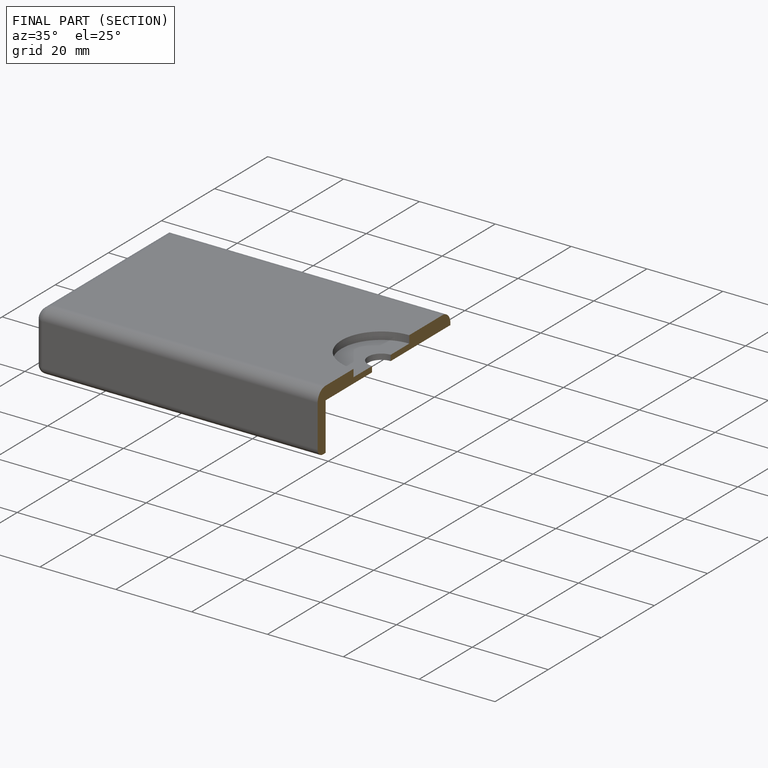
[diagram: finished part — half-section view (interior)]
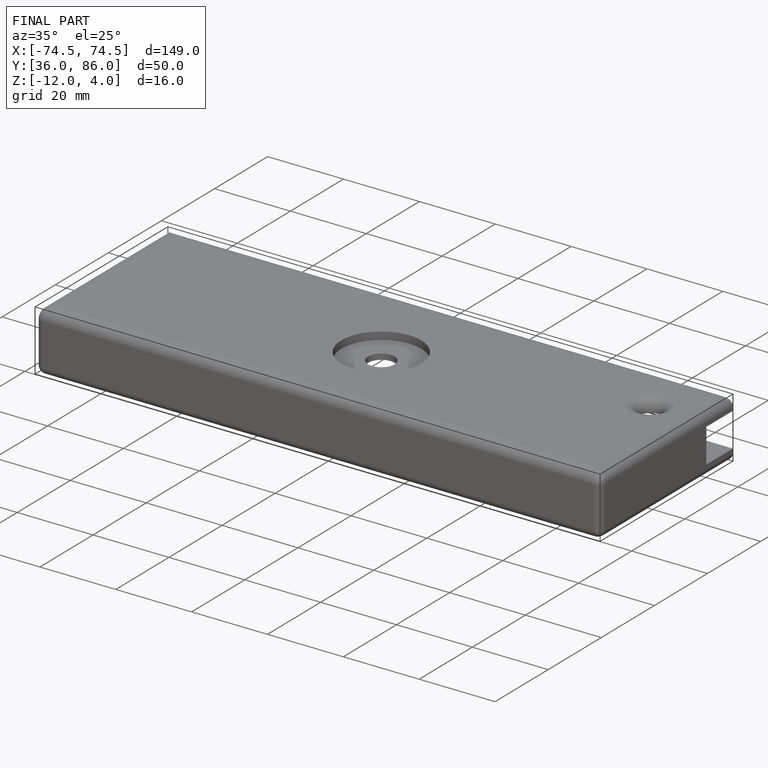
[diagram: finished part — iso view with bounding-box wireframe]
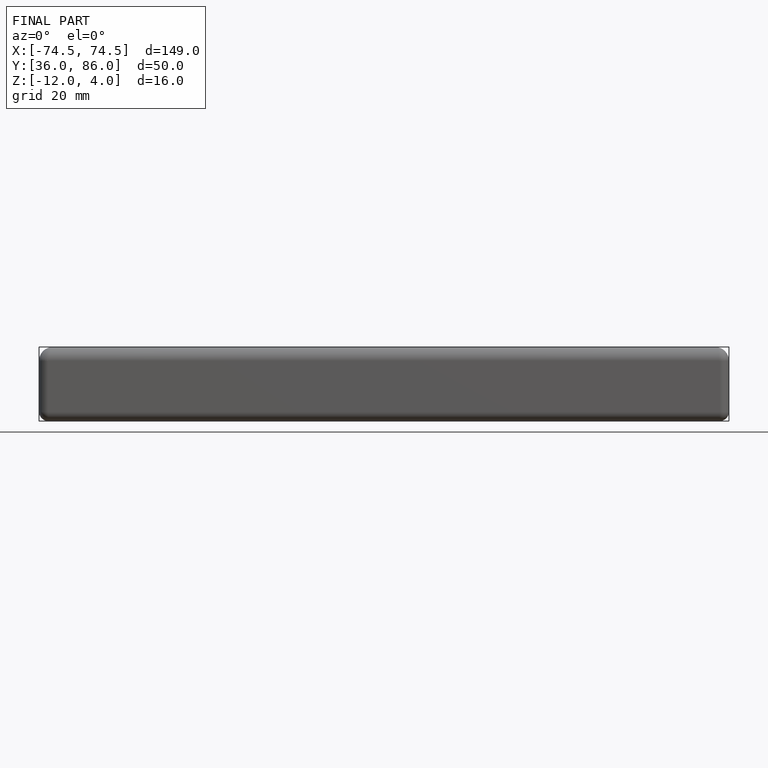
[diagram: finished part — front view with bounding-box wireframe]
